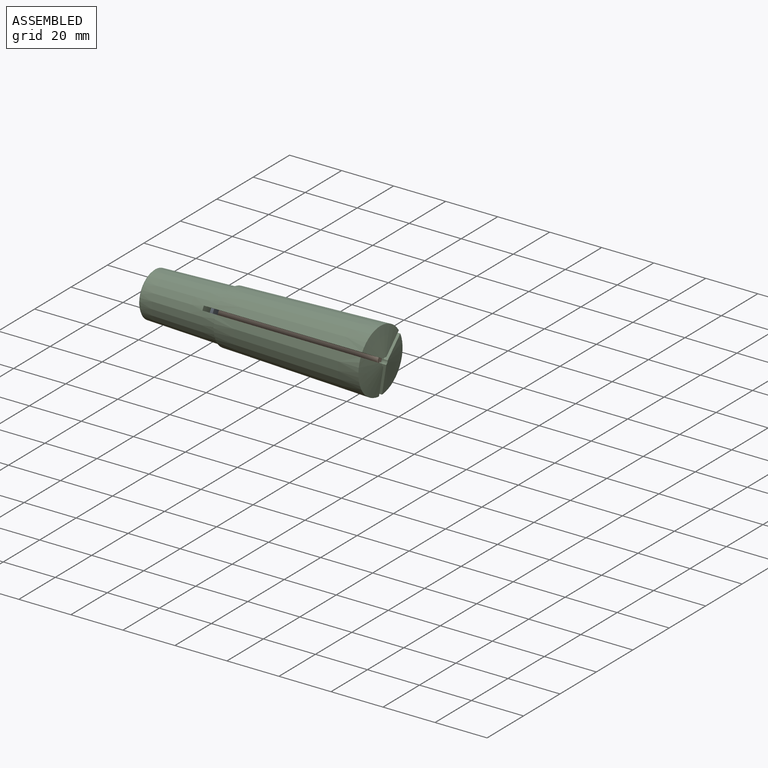
[diagram: assembled view]
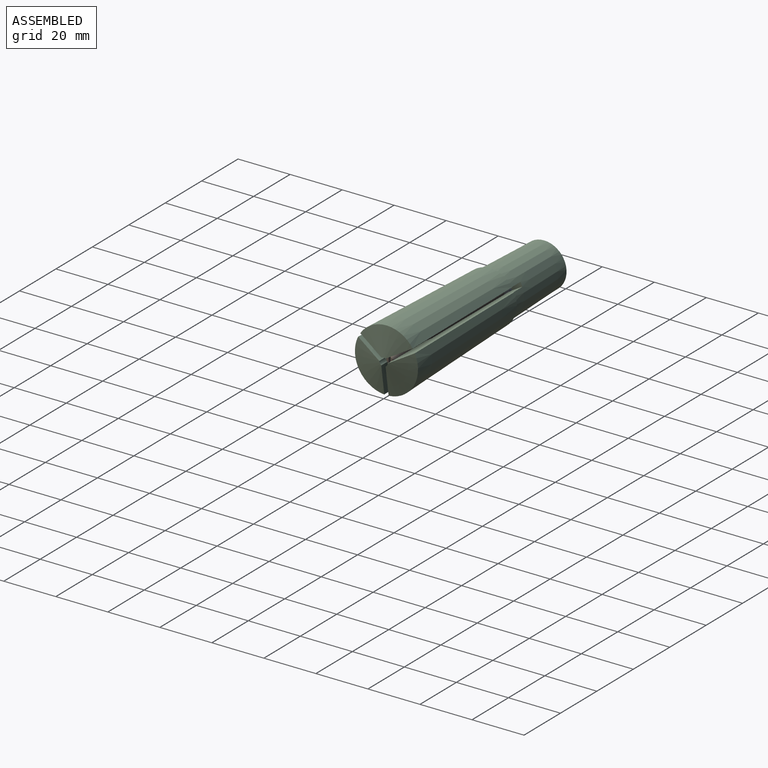
[diagram: assembled view, second angle]
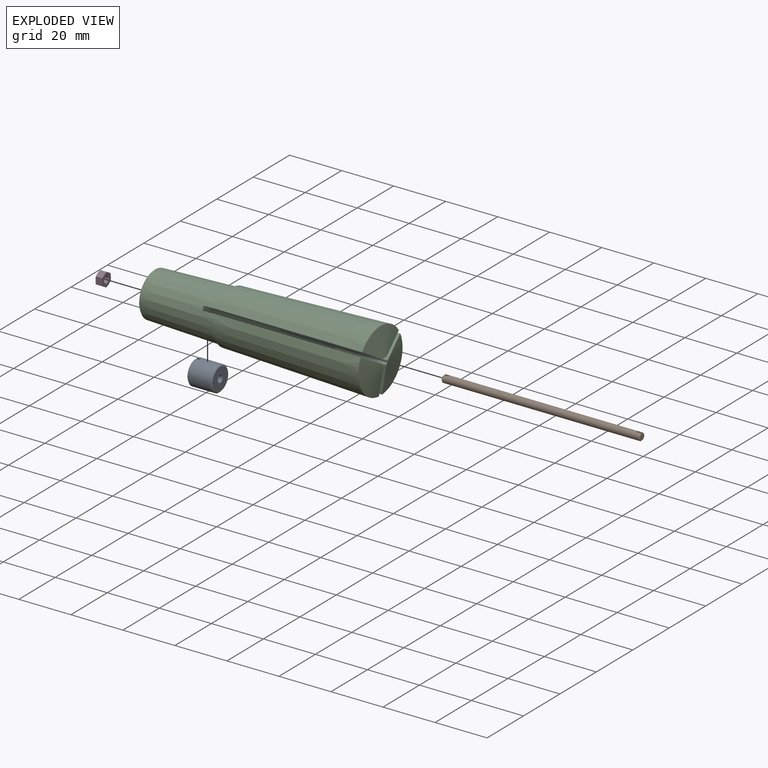
[diagram: exploded view]
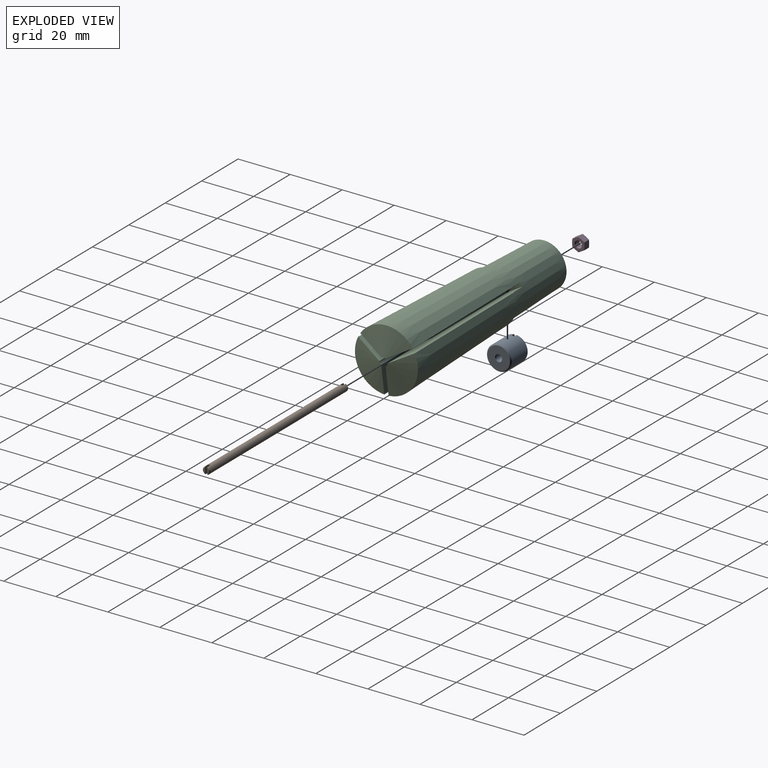
[diagram: exploded view, second angle]
ASSEMBLY  parts=4 mates=3
PART A: 17 faces, bbox 9.5x9.5x9.5 mm
  f0: plane 3.75x1.02mm, normal (0,1,0), area 3.7mm2, adj f1,f3,f5,f13
  f1: plane 3.74x1.66mm, normal (0,0,1), area 6mm2, adj f0,f5,f7,f9,f13,f14
  f2: plane 3.74x1.66mm, normal (0,0,1), area 6mm2, adj f5,f7,f9,f12,f13,f14
  f3: plane 3.74x1.66mm, normal (0,0,-1), area 6mm2, adj f0,f5,f6,f10,f13,f15
  f4: plane 3.74x1.66mm, normal (0,0,-1), area 6mm2, adj f5,f6,f10,f12,f13,f15
  f5: cylinder r=4.76mm len=9.53mm, axis (0,1,0), area 258.7mm2, adj f0,f1,f2,f3,f4,f7,f10,f11
  f6: plane 8.67x3.86mm, normal (0,1,0), area 23.9mm2, adj f3,f4,f10,f15
  f7: cone r=4.76mm half-angle=45deg, axis (0,-1,0), area 7.5mm2, adj f1,f2,f5,f9
  f8: plane 8.73x8.73mm, normal (0,-1,0), area 53.9mm2, adj f11,f16
  f9: plane 8.67x3.86mm, normal (0,1,0), area 23.9mm2, adj f1,f2,f7,f14
  f10: cone r=4.76mm half-angle=45deg, axis (0,-1,0), area 7.5mm2, adj f3,f4,f5,f6
  f11: cone r=4.37mm half-angle=45deg, axis (0,1,0), area 16.1mm2, adj f5,f8
  f12: plane 3.75x1.02mm, normal (0,1,0), area 3.7mm2, adj f2,f4,f5,f13
  f13: cylinder r=1.13mm len=9.02mm, axis (0,-1,0), area 61.1mm2, adj f0,f1,f2,f3,f4,f12,f14,f15
  f14: cone r=1.13mm half-angle=45deg, axis (0,1,0), area 1mm2, adj f1,f2,f9,f13
  f15: cone r=1.13mm half-angle=45deg, axis (0,1,0), area 1mm2, adj f3,f4,f6,f13
  f16: cone r=1.13mm half-angle=45deg, axis (0,-1,0), area 2.8mm2, adj f8,f13
PART B: 15 faces, bbox 2.9x76.2x2.9 mm
  f0: plane 2.2x0.77mm, normal (0,1,0), area 1.2mm2, adj f8,f13
  f1: cone r=1.42mm half-angle=45deg, axis (0,-1,0), area 1.2mm2, adj f2,f6,f14
  f2: cylinder r=1.42mm len=75.69mm, axis (0,1,0), area 671.2mm2, adj f1,f4,f7,f8,f9,f10,f11,f12
  f3: plane 2.2x0.77mm, normal (0,-1,0), area 1.2mm2, adj f4,f10
  f4: cone r=1.17mm half-angle=45deg, axis (0,1,0), area 1.2mm2, adj f2,f3,f10
  f5: plane 2.2x0.77mm, normal (0,-1,0), area 1.2mm2, adj f7,f11
  f6: plane 2.2x0.77mm, normal (0,1,0), area 1.2mm2, adj f1,f14
  f7: cone r=1.17mm half-angle=45deg, axis (0,1,0), area 1.2mm2, adj f2,f5,f11
  f8: cone r=1.42mm half-angle=45deg, axis (0,-1,0), area 1.2mm2, adj f0,f2,f13
  f9: plane 2.85x0.79mm, normal (0,-1,0), area 2.2mm2, adj f2,f10,f11
  f10: plane 2.74x1.91mm, normal (0,0,-1), area 5.1mm2, adj f2,f3,f4,f9
  f11: plane 2.74x1.91mm, normal (0,0,1), area 5.1mm2, adj f2,f5,f7,f9
  f12: plane 2.85x0.79mm, normal (0,1,0), area 2.2mm2, adj f2,f13,f14
  f13: plane 2.74x1.91mm, normal (0,0,-1), area 5.1mm2, adj f0,f2,f8,f12
  f14: plane 2.74x1.91mm, normal (0,0,1), area 5.1mm2, adj f1,f2,f6,f12
PART C: 31 faces, bbox 89.1x24.7x24.6 mm
  f0: plane 64.55x9.72mm, normal (0,-0.5,-0.87), area 501.3mm2, adj f6,f10,f12,f15,f18,f19,f21,f27
  f1: plane 64.55x11.16mm, normal (0,1,0), area 501.3mm2, adj f7,f9,f13,f16,f18,f20,f22,f27
  f2: plane 64.55x11.16mm, normal (0,-1,0), area 501.3mm2, adj f8,f11,f13,f14,f18,f23,f24,f27
  f3: plane 64.55x9.72mm, normal (0,0.5,0.87), area 501.3mm2, adj f7,f9,f12,f16,f18,f20,f22,f27
  f4: plane 64.55x9.72mm, normal (0,0.5,-0.87), area 501.3mm2, adj f6,f10,f15,f17,f18,f19,f21,f27
  f5: plane 64.55x9.72mm, normal (0,-0.5,0.87), area 501.3mm2, adj f8,f11,f14,f17,f18,f23,f24,f27
  f6: cone r=12.13mm half-angle=81.1deg, axis (-1,0,0), area 135.5mm2, adj f0,f4,f15,f29
  f7: cone r=12.13mm half-angle=81.1deg, axis (-1,0,0), area 135.5mm2, adj f1,f3,f16,f30
  f8: cone r=12.13mm half-angle=81.1deg, axis (-1,0,0), area 135.5mm2, adj f2,f5,f14,f28
  f9: cone r=0mm half-angle=59deg, axis (-1,0,0), area 10.7mm2, adj f1,f3,f27,f30
  f10: cone r=0mm half-angle=59deg, axis (-1,0,0), area 10.7mm2, adj f0,f4,f27,f29
  f11: cone r=0mm half-angle=59deg, axis (-1,0,0), area 10.7mm2, adj f2,f5,f27,f28
  f12: plane 5.57x4.17mm, normal (1,0,0), area 9mm2, adj f0,f3,f18,f27
  f13: plane 5.51x1.65mm, normal (1,0,0), area 9mm2, adj f1,f2,f18,f27
  f14: cone r=9.21mm half-angle=1.9deg, axis (1,0,0), area 1240.2mm2, adj f2,f5,f8,f24
  f15: cone r=9.21mm half-angle=1.9deg, axis (1,0,0), area 1240.2mm2, adj f0,f4,f6,f21
  f16: cone r=9.21mm half-angle=1.9deg, axis (1,0,0), area 1240.2mm2, adj f1,f3,f7,f22
  f17: plane 5.57x4.17mm, normal (1,0,0), area 9mm2, adj f4,f5,f18,f27
  f18: cone r=8.57mm half-angle=1.9deg, axis (1,0,0), area 1635.3mm2, adj f0,f1,f2,f3,f4,f5,f12,f13
  f19: torus R=10.07mm, axis (1,0,0), area 14.7mm2, adj f0,f4,f18,f21
  f20: torus R=10.07mm, axis (1,0,0), area 14.7mm2, adj f1,f3,f18,f22
  f21: plane 16.81x4.48mm, normal (-1,0,0), area 2.8mm2, adj f0,f4,f15,f19
  f22: plane 14.56x9.39mm, normal (-1,0,0), area 2.8mm2, adj f1,f3,f16,f20
  f23: torus R=10.07mm, axis (1,0,0), area 14.7mm2, adj f2,f5,f18,f24
  f24: plane 14.56x9.39mm, normal (-1,0,0), area 2.8mm2, adj f2,f5,f14,f23
  f25: plane 16.38x16.38mm, normal (-1,0,0), area 161.3mm2, adj f26,f27
  f26: cone r=8.58mm half-angle=46deg, axis (1,0,0), area 28.9mm2, adj f18,f25
  f27: cylinder r=3.97mm len=67.31mm, axis (-1,0,0), area 1464.9mm2, adj f0,f1,f2,f3,f4,f5,f9,f10
  f28: cylinder r=1.59mm len=19.91mm, axis (-1,0,0), area 31.6mm2, adj f2,f5,f8,f11
  f29: cylinder r=1.59mm len=19.91mm, axis (-1,0,0), area 31.6mm2, adj f0,f4,f6,f10
  f30: cylinder r=1.59mm len=19.91mm, axis (-1,0,0), area 31.6mm2, adj f1,f3,f7,f9
PART D: 23 faces, bbox 5.7x2.7x5.7 mm
  f0: plane 4.76x4.76mm, normal (0,-1,0), area 11.8mm2, adj f15,f16,f17,f18,f19,f20,f21
  f1: plane 4.76x4.76mm, normal (0,1,0), area 11.8mm2, adj f9,f10,f11,f12,f13,f14,f22
  f2: plane 2.74x2.59mm, normal (0.5,0,-0.87), area 6.8mm2, adj f3,f7,f9,f14,f16,f20
  f3: plane 2.96x2.75mm, normal (1,0,0), area 6.8mm2, adj f2,f4,f13,f14,f19,f20
  f4: plane 2.74x2.59mm, normal (0.5,0,0.87), area 6.8mm2, adj f3,f5,f12,f13,f18,f19
  f5: plane 2.74x2.59mm, normal (-0.5,0,0.87), area 6.8mm2, adj f4,f6,f11,f12,f17,f18
  f6: plane 2.96x2.75mm, normal (-1,0,0), area 6.8mm2, adj f5,f7,f10,f11,f15,f17
  f7: plane 2.74x2.59mm, normal (-0.5,0,-0.87), area 6.8mm2, adj f2,f6,f9,f10,f15,f16
  f8: cylinder r=1.13mm len=2.26mm, axis (0,-1,0), area 14.4mm2, adj f21,f22
  f9: cone r=2.75mm half-angle=75deg, axis (0,-1,0), area 0.5mm2, adj f1,f2,f7
  f10: cone r=2.75mm half-angle=75deg, axis (0,-1,0), area 0.5mm2, adj f1,f6,f7
  f11: cone r=2.75mm half-angle=75deg, axis (0,-1,0), area 0.5mm2, adj f1,f5,f6
  f12: cone r=2.75mm half-angle=75deg, axis (0,-1,0), area 0.5mm2, adj f1,f4,f5
  f13: cone r=2.75mm half-angle=75deg, axis (0,-1,0), area 0.5mm2, adj f1,f3,f4
  f14: cone r=2.75mm half-angle=75deg, axis (0,-1,0), area 0.5mm2, adj f1,f2,f3
  f15: cone r=2.75mm half-angle=75deg, axis (0,1,0), area 0.5mm2, adj f0,f6,f7
  f16: cone r=2.75mm half-angle=75deg, axis (0,1,0), area 0.5mm2, adj f0,f2,f7
  f17: cone r=2.75mm half-angle=75deg, axis (0,1,0), area 0.5mm2, adj f0,f5,f6
  f18: cone r=2.75mm half-angle=75deg, axis (0,1,0), area 0.5mm2, adj f0,f4,f5
  f19: cone r=2.75mm half-angle=75deg, axis (0,1,0), area 0.5mm2, adj f0,f3,f4
  f20: cone r=2.75mm half-angle=75deg, axis (0,1,0), area 0.5mm2, adj f0,f2,f3
  f21: cone r=1.13mm half-angle=45deg, axis (0,-1,0), area 2.8mm2, adj f0,f8
  f22: cone r=1.13mm half-angle=45deg, axis (0,1,0), area 2.8mm2, adj f1,f8
PLACE A rot(axis=(-0.58,0.58,0.58),120deg) t=(20.64,0,0)mm
PLACE B rot(axis=(0.58,-0.58,0.58),120deg) t=(48.26,0.72,0)mm
PLACE C at identity fixed
PLACE D rot(axis=(0.71,0.71,0),180deg) t=(14.6,0,0)mm
MATE fastened C.f6 <-> A.f5  axis (-1,0,0) through (0,0,0)mm
MATE fastened B.f0 <-> D.f8  axis (-1,0,0) through (10.16,0,0)mm
MATE fastened D.f8 <-> A.f5  axis (1,0,0) through (15.87,0,0)mm
